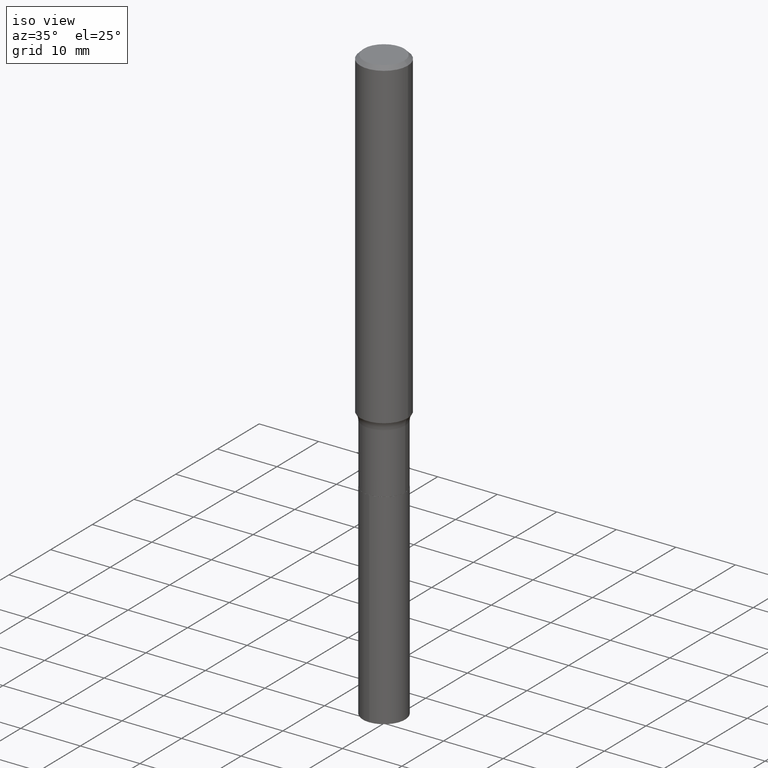
[diagram: clean part render]
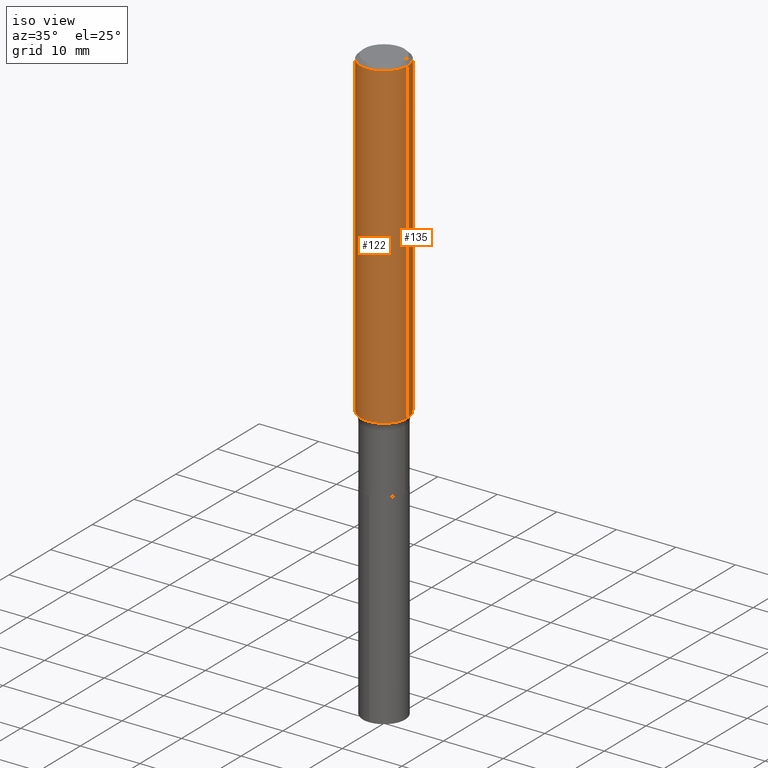
[diagram: same view with one multi-face feature highlighted, each face labeled with its STEP entity id]
A machine part, iso view. The highlighted faces form ONE feature: a constant-radius fillet chain: 2 tangent blend faces with common blend radius 4.0005 mm. The faces share edges in the B-rep.
Their STEP definitions:
[1] entity #135 (Cylinder):
#23 = CARTESIAN_POINT ( 'NONE',  ( -0.1575000000000000844, 1.119104808822158392E-15, -7.747322767151481189E-30 ) ) ;
#27 = ORIENTED_EDGE ( 'NONE', *, *, #413, .T. ) ;
#33 = CARTESIAN_POINT ( 'NONE',  ( -0.1575000000000000011, -2.640306250606575648E-15, -0.02362500000000017364 ) ) ;
#36 = CIRCLE ( 'NONE', #212, 0.1575000000000002232 ) ;
#58 = DIRECTION ( 'NONE',  ( -2.445468806185136597E-29, 3.491481338843145583E-15, 1.000000000000000000 ) ) ;
#62 = ORIENTED_EDGE ( 'NONE', *, *, #349, .F. ) ;
#68 = AXIS2_PLACEMENT_3D ( 'NONE', #235, #397, #345 ) ;
#73 = CARTESIAN_POINT ( 'NONE',  ( 0.1575000000000002787, -8.536152493962887743E-15, -2.129851243796487825 ) ) ;
#105 = DIRECTION ( 'NONE',  ( -2.445468806185136877E-29, 3.491481338843145188E-15, 1.000000000000000000 ) ) ;
#135 = ADVANCED_FACE ( 'NONE', ( #454 ), #141, .T. ) ;
#136 = LINE ( 'NONE', #453, #192 ) ;
#141 = CYLINDRICAL_SURFACE ( 'NONE', #447, 0.1575000000000000844 ) ;
#149 = DIRECTION ( 'NONE',  ( -2.445468806185136877E-29, 3.491481338843145188E-15, 1.000000000000000000 ) ) ;
#156 = VERTEX_POINT ( 'NONE', #73 ) ;
#192 = VECTOR ( 'NONE', #105, 39.37007874015748143 ) ;
#212 = AXIS2_PLACEMENT_3D ( 'NONE', #287, #329, #391 ) ;
#233 = ORIENTED_EDGE ( 'NONE', *, *, #400, .T. ) ;
#235 = CARTESIAN_POINT ( 'NONE',  ( 5.777420054612427235E-31, -8.248624663016991397E-17, -0.02362500000000017364 ) ) ;
#259 = CARTESIAN_POINT ( 'NONE',  ( 0.000000000000000000, 0.000000000000000000, 0.000000000000000000 ) ) ;
#267 = EDGE_CURVE ( 'NONE', #156, #458, #136, .T. ) ;
#270 = ORIENTED_EDGE ( 'NONE', *, *, #267, .F. ) ;
#287 = CARTESIAN_POINT ( 'NONE',  ( 5.208484778518924874E-29, -7.436335872227299474E-15, -2.129851243796487825 ) ) ;
#296 = CARTESIAN_POINT ( 'NONE',  ( 0.1575000000000000011, -1.182302868365756877E-15, -0.02362500000000017364 ) ) ;
#329 = DIRECTION ( 'NONE',  ( -2.445468806185136597E-29, 3.491481338843145583E-15, 1.000000000000000000 ) ) ;
#330 = CARTESIAN_POINT ( 'NONE',  ( -0.1575000000000002787, -6.317231063405141082E-15, -2.129851243796487825 ) ) ;
#333 = VECTOR ( 'NONE', #149, 39.37007874015748143 ) ;
#336 = VERTEX_POINT ( 'NONE', #33 ) ;
#340 = CIRCLE ( 'NONE', #68, 0.1575000000000000011 ) ;
#344 = VERTEX_POINT ( 'NONE', #330 ) ;
#345 = DIRECTION ( 'NONE',  ( 1.000000000000000000, -6.982962677686265922E-15, 0.000000000000000000 ) ) ;
#349 = EDGE_CURVE ( 'NONE', #458, #336, #340, .T. ) ;
#359 = DIRECTION ( 'NONE',  ( 1.000000000000000000, -6.982962677686267499E-15, 4.876176775795936353E-29 ) ) ;
#391 = DIRECTION ( 'NONE',  ( 1.000000000000000000, -6.982962677686265133E-15, 0.000000000000000000 ) ) ;
#397 = DIRECTION ( 'NONE',  ( -2.445468806185136597E-29, 3.491481338843145583E-15, 1.000000000000000000 ) ) ;
#400 = EDGE_CURVE ( 'NONE', #156, #344, #36, .T. ) ;
#413 = EDGE_CURVE ( 'NONE', #344, #336, #418, .T. ) ;
#418 = LINE ( 'NONE', #23, #333 ) ;
#447 = AXIS2_PLACEMENT_3D ( 'NONE', #259, #58, #359 ) ;
#453 = CARTESIAN_POINT ( 'NONE',  ( 0.1575000000000000844, -1.099816621735587677E-15, 7.679978421878603638E-30 ) ) ;
#454 = FACE_OUTER_BOUND ( 'NONE', #466, .T. ) ;
#458 = VERTEX_POINT ( 'NONE', #296 ) ;
#466 = EDGE_LOOP ( 'NONE', ( #233, #27, #62, #270 ) ) ;
[2] entity #122 (Cylinder):
#6 = CARTESIAN_POINT ( 'NONE',  ( 5.208484778518924874E-29, -7.436335872227299474E-15, -2.129851243796487825 ) ) ;
#21 = DIRECTION ( 'NONE',  ( -2.445468806185136597E-29, 3.491481338843145583E-15, 1.000000000000000000 ) ) ;
#23 = CARTESIAN_POINT ( 'NONE',  ( -0.1575000000000000844, 1.119104808822158392E-15, -7.747322767151481189E-30 ) ) ;
#33 = CARTESIAN_POINT ( 'NONE',  ( -0.1575000000000000011, -2.640306250606575648E-15, -0.02362500000000017364 ) ) ;
#38 = ORIENTED_EDGE ( 'NONE', *, *, #81, .F. ) ;
#42 = ORIENTED_EDGE ( 'NONE', *, *, #413, .F. ) ;
#73 = CARTESIAN_POINT ( 'NONE',  ( 0.1575000000000002787, -8.536152493962887743E-15, -2.129851243796487825 ) ) ;
#81 = EDGE_CURVE ( 'NONE', #336, #458, #101, .T. ) ;
#84 = AXIS2_PLACEMENT_3D ( 'NONE', #6, #348, #274 ) ;
#101 = CIRCLE ( 'NONE', #430, 0.1575000000000000011 ) ;
#105 = DIRECTION ( 'NONE',  ( -2.445468806185136877E-29, 3.491481338843145188E-15, 1.000000000000000000 ) ) ;
#122 = ADVANCED_FACE ( 'NONE', ( #218 ), #331, .T. ) ;
#128 = DIRECTION ( 'NONE',  ( 1.000000000000000000, -6.982962677686265922E-15, 0.000000000000000000 ) ) ;
#136 = LINE ( 'NONE', #453, #192 ) ;
#149 = DIRECTION ( 'NONE',  ( -2.445468806185136877E-29, 3.491481338843145188E-15, 1.000000000000000000 ) ) ;
#156 = VERTEX_POINT ( 'NONE', #73 ) ;
#178 = DIRECTION ( 'NONE',  ( 1.000000000000000000, -6.982962677686267499E-15, 4.876176775795936353E-29 ) ) ;
#192 = VECTOR ( 'NONE', #105, 39.37007874015748143 ) ;
#201 = CIRCLE ( 'NONE', #84, 0.1575000000000002232 ) ;
#218 = FACE_OUTER_BOUND ( 'NONE', #421, .T. ) ;
#221 = CARTESIAN_POINT ( 'NONE',  ( 0.000000000000000000, 0.000000000000000000, 0.000000000000000000 ) ) ;
#223 = AXIS2_PLACEMENT_3D ( 'NONE', #221, #21, #178 ) ;
#232 = ORIENTED_EDGE ( 'NONE', *, *, #352, .T. ) ;
#267 = EDGE_CURVE ( 'NONE', #156, #458, #136, .T. ) ;
#274 = DIRECTION ( 'NONE',  ( 1.000000000000000000, -6.982962677686265133E-15, 0.000000000000000000 ) ) ;
#296 = CARTESIAN_POINT ( 'NONE',  ( 0.1575000000000000011, -1.182302868365756877E-15, -0.02362500000000017364 ) ) ;
#330 = CARTESIAN_POINT ( 'NONE',  ( -0.1575000000000002787, -6.317231063405141082E-15, -2.129851243796487825 ) ) ;
#331 = CYLINDRICAL_SURFACE ( 'NONE', #223, 0.1575000000000000844 ) ;
#333 = VECTOR ( 'NONE', #149, 39.37007874015748143 ) ;
#336 = VERTEX_POINT ( 'NONE', #33 ) ;
#338 = ORIENTED_EDGE ( 'NONE', *, *, #267, .T. ) ;
#344 = VERTEX_POINT ( 'NONE', #330 ) ;
#348 = DIRECTION ( 'NONE',  ( -2.445468806185136597E-29, 3.491481338843145583E-15, 1.000000000000000000 ) ) ;
#352 = EDGE_CURVE ( 'NONE', #344, #156, #201, .T. ) ;
#411 = DIRECTION ( 'NONE',  ( -2.445468806185136597E-29, 3.491481338843145583E-15, 1.000000000000000000 ) ) ;
#413 = EDGE_CURVE ( 'NONE', #344, #336, #418, .T. ) ;
#418 = LINE ( 'NONE', #23, #333 ) ;
#421 = EDGE_LOOP ( 'NONE', ( #42, #232, #338, #38 ) ) ;
#430 = AXIS2_PLACEMENT_3D ( 'NONE', #439, #411, #128 ) ;
#439 = CARTESIAN_POINT ( 'NONE',  ( 5.777420054612427235E-31, -8.248624663016991397E-17, -0.02362500000000017364 ) ) ;
#453 = CARTESIAN_POINT ( 'NONE',  ( 0.1575000000000000844, -1.099816621735587677E-15, 7.679978421878603638E-30 ) ) ;
#458 = VERTEX_POINT ( 'NONE', #296 ) ;